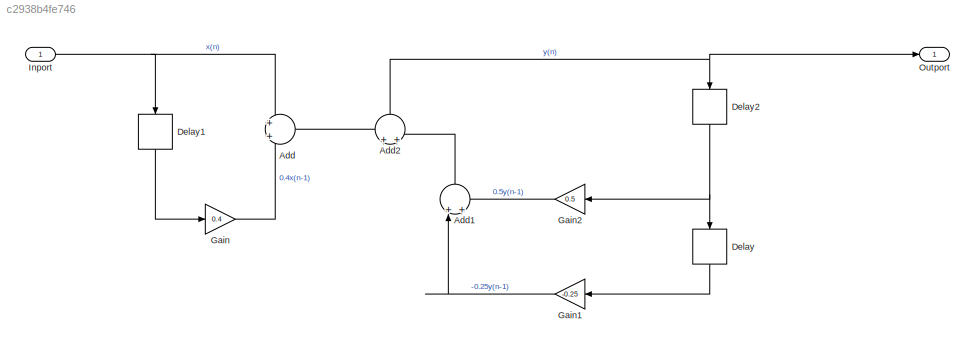
MODEL slx_c2938b4fe746
KIND model
CONFIG AbsTol = auto
CONFIG EnableMultiTasking = off
CONFIG FixedStep = auto
CONFIG MaxStep = auto
CONFIG MinStep = auto
CONFIG RelTol = 1e-3
CONFIG SampleTimeConstraint = Unconstrained
CONFIG SolverName = VariableStepAuto
CONFIG StartTime = 0.0
CONFIG StopTime = 10.0
BLOCK [Sum] Add
  Ports = [2, 1]
BLOCK [Sum] Add1
  NameLocation = right
  Ports = [2, 1]
BLOCK [Sum] Add2
  NameLocation = right
  Ports = [2, 1]
BLOCK [Delay] Delay
  DelayLength = 1
  InputPortMap = u0
  NameLocation = left
  Ports = [1, 1]
BLOCK [Delay] Delay1
  DelayLength = 1
  InputPortMap = u0
  NameLocation = left
  Ports = [1, 1]
BLOCK [Delay] Delay2
  DelayLength = 1
  InputPortMap = u0
  NameLocation = left
  Ports = [1, 1]
BLOCK [Gain] Gain
  Gain = 0.4
BLOCK [Gain] Gain1
  Gain = -0.25
  NameLocation = top
BLOCK [Gain] Gain2
  Gain = 0.5
  NameLocation = top
BLOCK [Inport] Inport
  IconDisplay = Signal name
BLOCK [Outport] Outport
  IconDisplay = Signal name
LINE Add1:1 -> Add2:2
NET Add2:1 -> Delay2:1, Outport:1
LINE Add:1 -> Add2:1
LINE Delay1:1 -> Gain:1
NET Delay2:1 -> Delay:1, Gain2:1
LINE Delay:1 -> Gain1:1
LINE Gain1:1 -> Add1:1
LINE Gain2:1 -> Add1:2
LINE Gain:1 -> Add:2
NET Inport:1 -> Add:1, Delay1:1
note: NET lines group one-source signal fan-out (src -> all destinations, sorted); 1:1 wires keep LINE
